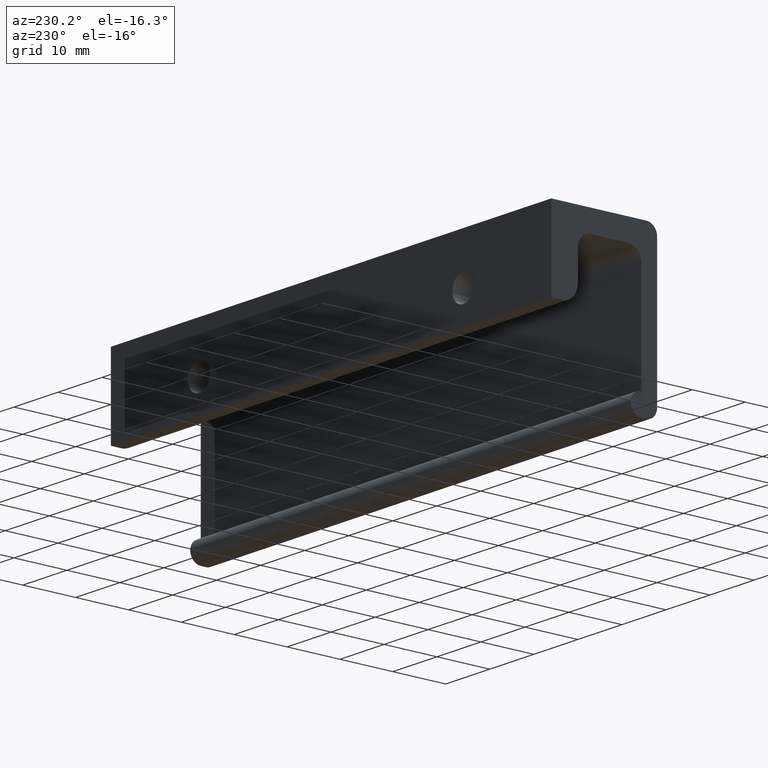
[diagram: clean part render]
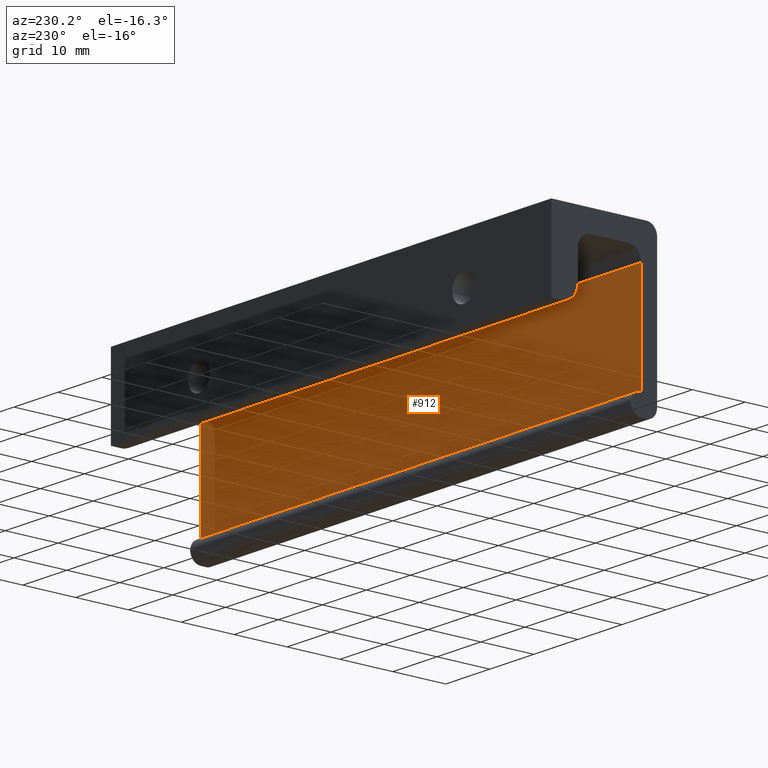
[diagram: same view with one face highlighted and labeled with its STEP entity id]
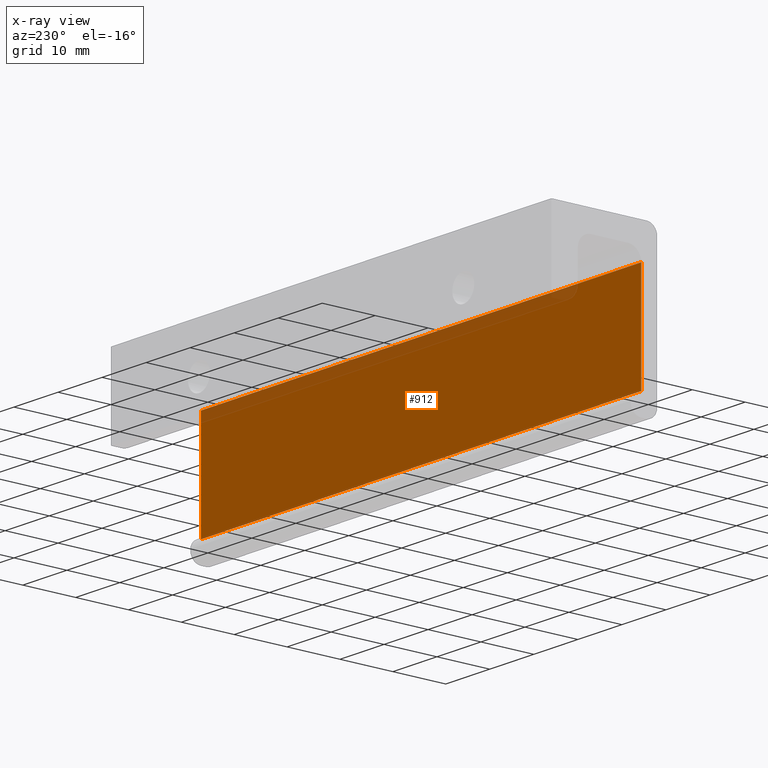
[diagram: x-ray of the same camera — body ghosted, the highlighted face saturated]
A machine part, auxiliary view. The second image highlights one B-rep face of the part: STEP entity #912.
The next image is the same camera in x-ray: the body ghosted, the highlighted face saturated — about 8% of this face is hidden behind the body in this view.
In plain terms, the highlighted face is a freeform B-spline surface patch.
Its self-contained STEP definition (entity closure, byte-faithful):
#527=CARTESIAN_POINT('',(0.0,-17.0,-6.500000000000000));
#528=VERTEX_POINT('',#527);
#542=CARTESIAN_POINT('',(0.0,-17.000000000000249,-26.0));
#543=VERTEX_POINT('',#542);
#544=CARTESIAN_POINT('',(0.0,-17.0,-6.500000000000000));
#545=CARTESIAN_POINT('',(0.0,-17.000000000000249,-26.0));
#546=QUASI_UNIFORM_CURVE('',1,(#544,#545),.UNSPECIFIED.,.F.,.U.);
#547=EDGE_CURVE('',#528,#543,#546,.T.);
#683=CARTESIAN_POINT('',(100.0,-17.000000000000249,-26.0));
#684=VERTEX_POINT('',#683);
#700=CARTESIAN_POINT('',(100.0,-17.0,-6.500000000000000));
#701=VERTEX_POINT('',#700);
#702=CARTESIAN_POINT('',(100.0,-17.0,-6.500000000000000));
#703=CARTESIAN_POINT('',(100.0,-17.000000000000249,-26.0));
#704=QUASI_UNIFORM_CURVE('',1,(#702,#703),.UNSPECIFIED.,.F.,.U.);
#705=EDGE_CURVE('',#701,#684,#704,.T.);
#887=CARTESIAN_POINT('',(100.0,-17.000000000000249,-26.0));
#888=CARTESIAN_POINT('',(0.0,-17.000000000000249,-26.0));
#889=QUASI_UNIFORM_CURVE('',1,(#887,#888),.UNSPECIFIED.,.F.,.U.);
#890=EDGE_CURVE('',#684,#543,#889,.T.);
#897=CARTESIAN_POINT('',(-4.994999806180597,-17.000000000000249,-26.974024962205220));
#898=CARTESIAN_POINT('',(-4.994999806180597,-17.000000000000249,-5.525974514764027));
#899=CARTESIAN_POINT('',(104.995002488389600,-17.000000000000249,-26.974024962205220));
#900=CARTESIAN_POINT('',(104.995002488389600,-17.000000000000249,-5.525974514764027));
#901=B_SPLINE_SURFACE_WITH_KNOTS('',1,1,((#897,#899),(#898,#900)),.UNSPECIFIED.,.F.,.F.,.U.,(2,2),(2,2),(0.0,21.448050447441190),(0.0,109.990002294570200),.UNSPECIFIED.);
#902=ORIENTED_EDGE('',*,*,#547,.F.);
#903=CARTESIAN_POINT('',(100.0,-17.0,-6.500000000000000));
#904=CARTESIAN_POINT('',(0.0,-17.0,-6.500000000000000));
#905=QUASI_UNIFORM_CURVE('',1,(#903,#904),.UNSPECIFIED.,.F.,.U.);
#906=EDGE_CURVE('',#701,#528,#905,.T.);
#907=ORIENTED_EDGE('',*,*,#906,.F.);
#908=ORIENTED_EDGE('',*,*,#705,.T.);
#909=ORIENTED_EDGE('',*,*,#890,.T.);
#910=EDGE_LOOP('',(#902,#907,#908,#909));
#911=FACE_OUTER_BOUND('',#910,.T.);
#912=ADVANCED_FACE('',(#911),#901,.T.);